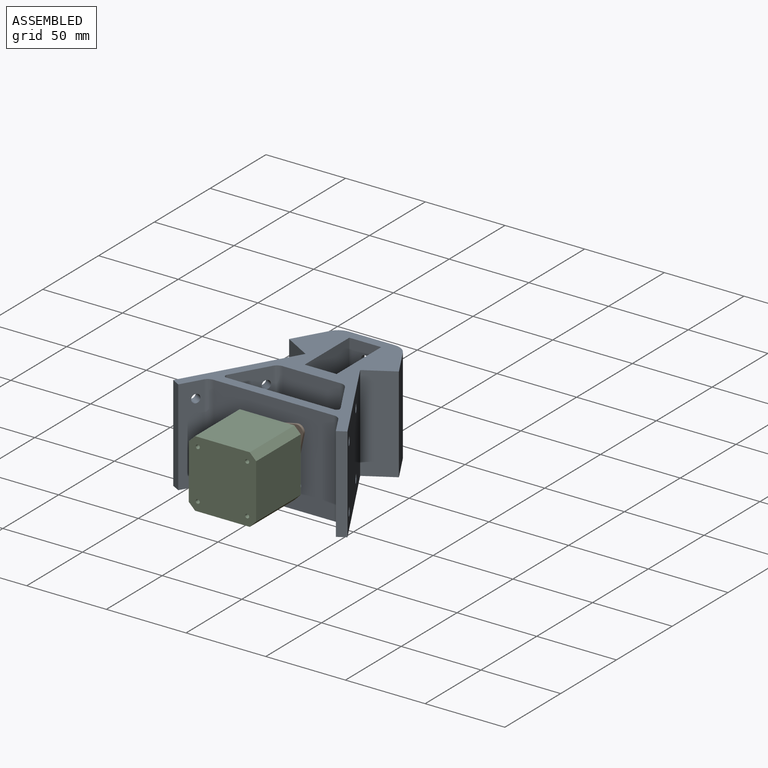
[diagram: assembled view]
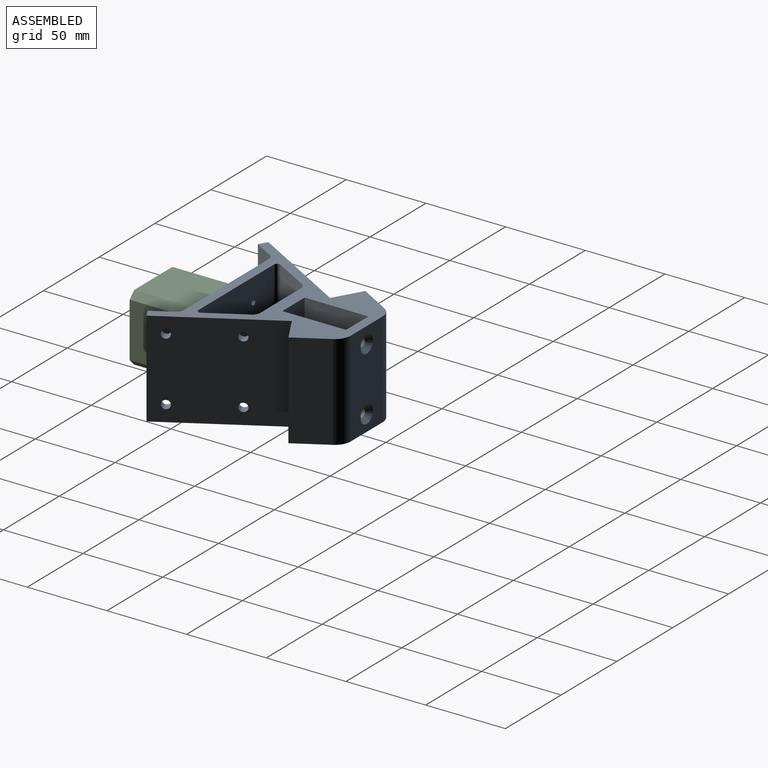
[diagram: assembled view, second angle]
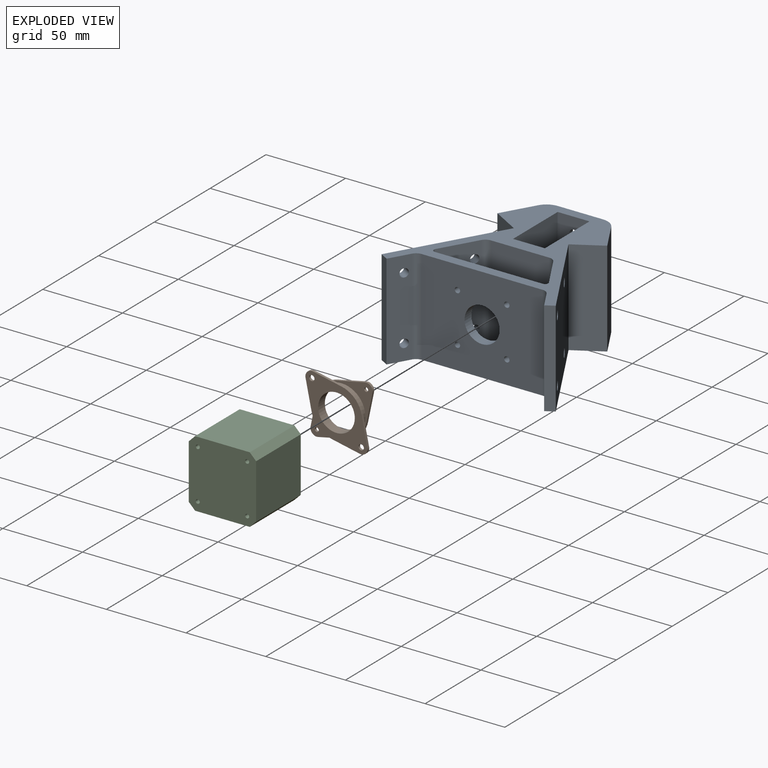
[diagram: exploded view]
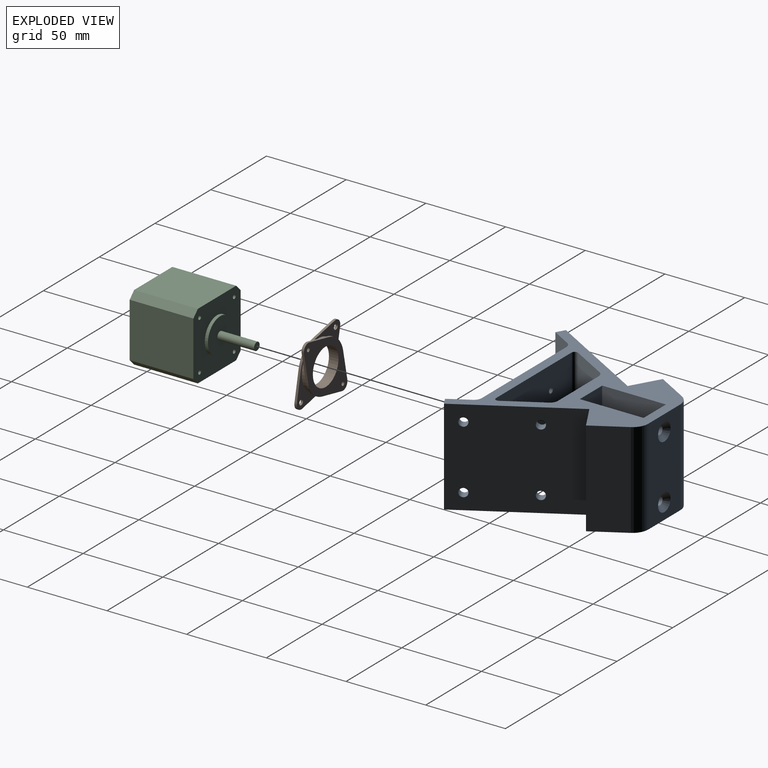
[diagram: exploded view, second angle]
ASSEMBLY  parts=3 mates=2
PART A: 47 faces, bbox 109.3x103x60 mm
  f0: plane 60x20mm, normal (0,-1,0), area 1155.9mm2, adj f1,f19,f20,f21,f43,f45
  f1: plane 60x40mm, normal (-1,0,0), area 2400mm2, adj f0,f2,f20,f21
  f2: plane 60x20mm, normal (0,1,0), area 1200mm2, adj f1,f19,f20,f21
  f3: plane 64.95x60mm, normal (-0.87,0.5,0), area 4411.8mm2, adj f4,f17,f20,f21,f39,f40,f41,f42
  f4: plane 60x5.2mm, normal (-0.5,-0.87,0), area 360mm2, adj f3,f5,f20,f21
  f5: plane 60x12.5mm, normal (0.87,-0.5,0), area 821.9mm2, adj f4,f20,f21,f26,f41,f42
  f6: plane 75.8x60mm, normal (0,-1,0), area 4131.3mm2, adj f20,f21,f26,f27,f30,f31,f32,f33
  f7: plane 60x12.5mm, normal (-0.87,-0.5,0), area 821.9mm2, adj f8,f20,f21,f27,f37,f38
  f8: plane 60x5.2mm, normal (0.5,-0.87,0), area 360mm2, adj f7,f9,f20,f21
  f9: plane 64.95x60mm, normal (0.87,0.5,0), area 4411.8mm2, adj f8,f10,f20,f21,f35,f36,f37,f38
  f10: plane 60x17.32mm, normal (0.5,-0.87,0), area 1200mm2, adj f9,f11,f20,f21
  f11: plane 60x20.05mm, normal (0.87,0.5,0), area 1389mm2, adj f10,f20,f21,f22
  f12: plane 60x28.45mm, normal (0,1,0), area 1510.1mm2, adj f20,f21,f22,f23,f44,f46
  f13: plane 60x20.05mm, normal (-0.87,0.5,0), area 1389mm2, adj f17,f20,f21,f23
  f14: plane 67.71x60mm, normal (0,1,0), area 3646.3mm2, adj f20,f21,f28,f29,f30,f31,f32,f33
  f15: plane 60x22.5mm, normal (0.87,-0.5,0), area 1514.7mm2, adj f20,f21,f24,f28,f39,f40
  f16: plane 60x36.54mm, normal (0,-1,0), area 2192.2mm2, adj f20,f21,f24,f25
  f17: plane 60x17.32mm, normal (-0.5,-0.87,0), area 1200mm2, adj f3,f13,f20,f21
  f18: plane 60x22.5mm, normal (-0.87,-0.5,0), area 1514.7mm2, adj f20,f21,f25,f29,f35,f36
  f19: plane 60x40mm, normal (1,0,0), area 2400mm2, adj f0,f2,f20,f21
  f20: plane 109.28x103mm, normal (0,0,1), area 3064.2mm2, adj f0,f1,f2,f3,f4,f5,f6,f7
  f21: plane 109.28x103mm, normal (0,0,-1), area 3064.2mm2, adj f0,f1,f2,f3,f4,f5,f6,f7
  f22: cylinder r=10mm len=60mm, axis (0,0,-1), area 628.3mm2, adj f11,f12,f20,f21
  f23: cylinder r=10mm len=60mm, axis (0,0,1), area 628.3mm2, adj f12,f13,f20,f21
  f24: cylinder r=5mm len=60mm, axis (0,0,1), area 314.2mm2, adj f15,f16,f20,f21
  f25: cylinder r=5mm len=60mm, axis (0,0,-1), area 314.2mm2, adj f16,f18,f20,f21
  f26: cylinder r=5mm len=60mm, axis (0,0,1), area 314.2mm2, adj f5,f6,f20,f21
  f27: cylinder r=5mm len=60mm, axis (0,0,-1), area 314.2mm2, adj f6,f7,f20,f21
  f28: cylinder r=2mm len=60mm, axis (0,0,-1), area 251.3mm2, adj f14,f15,f20,f21
  f29: cylinder r=2mm len=60mm, axis (0,0,1), area 251.3mm2, adj f14,f18,f20,f21
  f30: cylinder r=11mm len=22mm, axis (0,-1,0), area 414.7mm2, adj f6,f14
  f31: cylinder r=1.7mm len=6mm, axis (0,-1,0), area 64.1mm2, adj f6,f14
  f32: cylinder r=1.7mm len=6mm, axis (0,-1,0), area 64.1mm2, adj f6,f14
  f33: cylinder r=1.7mm len=6mm, axis (0,-1,0), area 64.1mm2, adj f6,f14
  f34: cylinder r=1.7mm len=6mm, axis (0,-1,0), area 64.1mm2, adj f6,f14
  f35: cylinder r=2.65mm len=7.85mm, axis (0.87,0.5,0), area 99.9mm2, adj f9,f18
  f36: cylinder r=2.65mm len=7.85mm, axis (0.87,0.5,0), area 99.9mm2, adj f9,f18
  f37: cylinder r=2.65mm len=7.85mm, axis (0.87,0.5,0), area 99.9mm2, adj f7,f9
  f38: cylinder r=2.65mm len=7.85mm, axis (0.87,0.5,0), area 99.9mm2, adj f7,f9
  f39: cylinder r=2.65mm len=7.85mm, axis (-0.87,0.5,0), area 99.9mm2, adj f3,f15
  f40: cylinder r=2.65mm len=7.85mm, axis (-0.87,0.5,0), area 99.9mm2, adj f3,f15
  f41: cylinder r=2.65mm len=7.85mm, axis (-0.87,0.5,0), area 99.9mm2, adj f3,f5
  f42: cylinder r=2.65mm len=7.85mm, axis (-0.87,0.5,0), area 99.9mm2, adj f3,f5
  f43: cylinder r=2.65mm len=5.3mm, axis (0,1,0), area 50.8mm2, adj f0,f44
  f44: cone r=2.65mm half-angle=45deg, axis (0,1,0), area 108.1mm2, adj f12,f43
  f45: cylinder r=2.65mm len=5.3mm, axis (0,1,0), area 50.8mm2, adj f0,f46
  f46: cone r=2.65mm half-angle=45deg, axis (0,1,0), area 108.1mm2, adj f12,f45
PART B: 26 faces, bbox 39x39x6 mm
  f0: plane 17.96x3.75mm, normal (-0.2,0.98,0), area 27.5mm2, adj f1,f7,f8,f10
  f1: cylinder r=16mm len=12.39mm, axis (0,0,1), area 27.8mm2, adj f0,f2,f8,f10
  f2: plane 17.96x3.75mm, normal (-0.98,0.2,0), area 27.5mm2, adj f1,f3,f8,f10
  f3: cylinder r=4mm len=4.82mm, axis (0,0,1), area 11.9mm2, adj f2,f4,f8,f10
  f4: plane 17.96x3.75mm, normal (0.2,-0.98,0), area 27.5mm2, adj f3,f5,f8,f10
  f5: cylinder r=16mm len=12.39mm, axis (0,0,1), area 27.8mm2, adj f4,f6,f8,f10
  f6: plane 17.96x3.75mm, normal (0.98,-0.2,0), area 27.5mm2, adj f5,f7,f8,f10
  f7: cylinder r=4mm len=4.82mm, axis (0,0,1), area 11.9mm2, adj f0,f6,f8,f10
  f8: plane 39x39mm, normal (0,0,-1), area 628.5mm2, adj f0,f1,f2,f3,f4,f5,f6,f7
  f9: cylinder r=15mm len=30mm, axis (0,0,1), area 282.7mm2, adj f10,f20
  f10: plane 39x39mm, normal (0,0,1), area 337.1mm2, adj f0,f1,f2,f3,f4,f5,f6,f7
  f11: plane 17.96x3.75mm, normal (0.2,0.98,0), area 27.5mm2, adj f12,f18,f19,f20
  f12: cylinder r=16mm len=12.39mm, axis (0,0,-1), area 27.8mm2, adj f11,f13,f19,f20
  f13: plane 17.96x3.75mm, normal (0.98,0.2,0), area 27.5mm2, adj f12,f14,f19,f20
  f14: cylinder r=4mm len=4.82mm, axis (0,0,-1), area 11.9mm2, adj f13,f15,f19,f20
  f15: plane 17.96x3.75mm, normal (-0.2,-0.98,0), area 27.5mm2, adj f14,f16,f19,f20
  f16: cylinder r=16mm len=12.39mm, axis (0,0,-1), area 27.8mm2, adj f15,f17,f19,f20
  f17: plane 17.96x3.75mm, normal (-0.98,-0.2,0), area 27.5mm2, adj f16,f18,f19,f20
  f18: cylinder r=4mm len=4.82mm, axis (0,0,-1), area 11.9mm2, adj f11,f17,f19,f20
  f19: plane 39x39mm, normal (0,0,1), area 636.8mm2, adj f11,f12,f13,f14,f15,f16,f17,f18
  f20: plane 39x39mm, normal (0,0,-1), area 345.4mm2, adj f9,f11,f12,f13,f14,f15,f16,f17
  f21: cylinder r=11.5mm len=23mm, axis (0,0,1), area 433.5mm2, adj f8,f19
  f22: cylinder r=1.7mm len=3.4mm, axis (0,0,1), area 16mm2, adj f8,f10
  f23: cylinder r=1.7mm len=3.4mm, axis (0,0,1), area 16mm2, adj f8,f10
  f24: cylinder r=1.25mm len=2.5mm, axis (0,0,1), area 11.8mm2, adj f19,f20
  f25: cylinder r=1.25mm len=2.5mm, axis (0,0,1), area 11.8mm2, adj f19,f20
PART C: 18 faces, bbox 42.3x65x42.3 mm
  f0: plane 40x34.3mm, normal (1,0,0), area 1372mm2, adj f4,f5,f11,f13
  f1: plane 40x34.3mm, normal (0,0,1), area 1372mm2, adj f4,f5,f12,f13
  f2: plane 40x34.3mm, normal (-1,0,0), area 1372mm2, adj f4,f5,f10,f12
  f3: plane 40x34.3mm, normal (0,0,-1), area 1372mm2, adj f4,f5,f10,f11
  f4: plane 42.3x42.3mm, normal (0,1,0), area 1737.7mm2, adj f0,f1,f2,f3,f10,f11,f12,f13
  f5: plane 42.3x42.3mm, normal (0,-1,0), area 1357.5mm2, adj f0,f1,f2,f3,f6,f10,f11,f12
  f6: cylinder r=11mm len=22mm, axis (0,1,0), area 138.2mm2, adj f5,f7
  f7: plane 22x22mm, normal (0,-1,0), area 360.5mm2, adj f6,f9
  f8: plane 5x5mm, normal (0,-1,0), area 19.6mm2, adj f9
  f9: cylinder r=2.5mm len=23mm, axis (0,1,0), area 361.3mm2, adj f7,f8
  f10: plane 40x4mm, normal (-0.71,0,-0.71), area 226.3mm2, adj f2,f3,f4,f5
  f11: plane 40x4mm, normal (0.71,0,-0.71), area 226.3mm2, adj f0,f3,f4,f5
  f12: plane 40x4mm, normal (-0.71,0,0.71), area 226.3mm2, adj f1,f2,f4,f5
  f13: plane 40x4mm, normal (0.71,0,0.71), area 226.3mm2, adj f0,f1,f4,f5
  f14: cylinder r=1.25mm len=40mm, axis (0,-1,0), area 314.2mm2, adj f4,f5
  f15: cylinder r=1.25mm len=40mm, axis (0,-1,0), area 314.2mm2, adj f4,f5
  f16: cylinder r=1.25mm len=40mm, axis (0,-1,0), area 314.2mm2, adj f4,f5
  f17: cylinder r=1.25mm len=40mm, axis (0,-1,0), area 314.2mm2, adj f4,f5
PLACE A t=(0,62,0)mm
PLACE B rot(axis=(-1,0,0),90deg) t=(0,-3,0)mm
PLACE C rot(axis=(1,0,0),180deg) t=(0,-6,0)mm
MATE fastened C.f6 <-> B.f21  axis (0,1,0) through (0,-6,0)mm
MATE fastened B.f21 <-> A.f30  axis (0,1,0) through (0,0,0)mm
